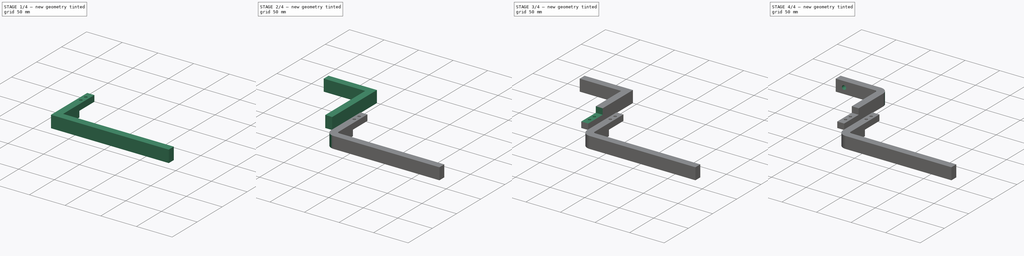
[diagram: build sequence overview — one tinted view per stage of 4, left to right]
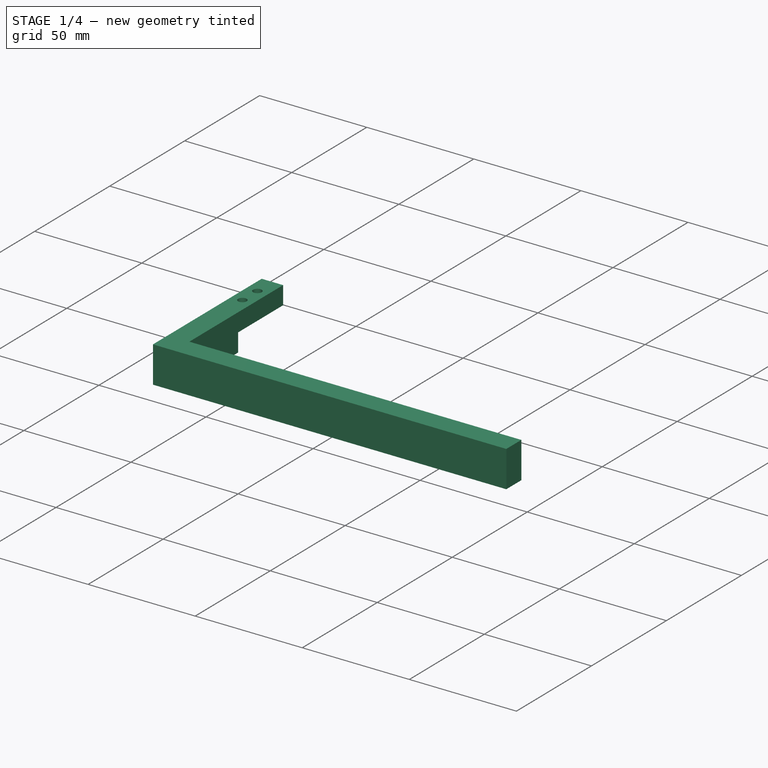
[diagram: stage 1 of 4 — iso view after this stage's code; geometry added in this stage tinted green]
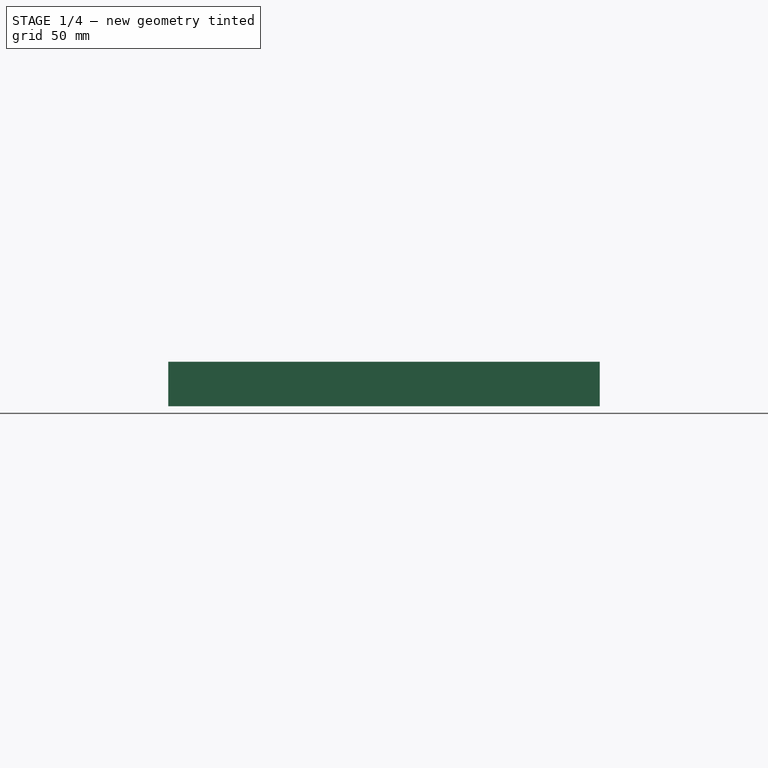
[diagram: stage 1 of 4 — front view after this stage's code; geometry added in this stage tinted green]
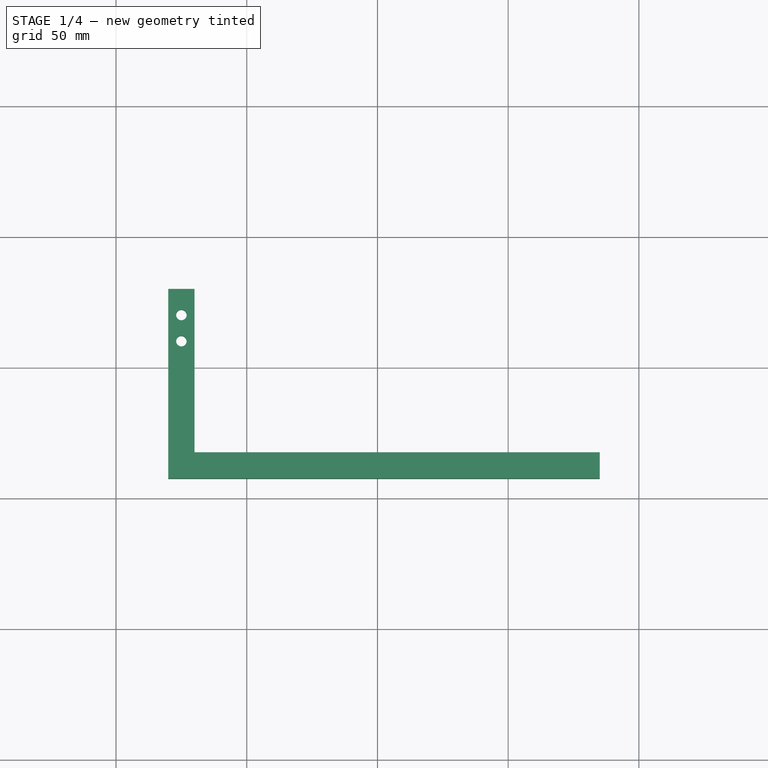
[diagram: stage 1 of 4 — top view after this stage's code; geometry added in this stage tinted green]
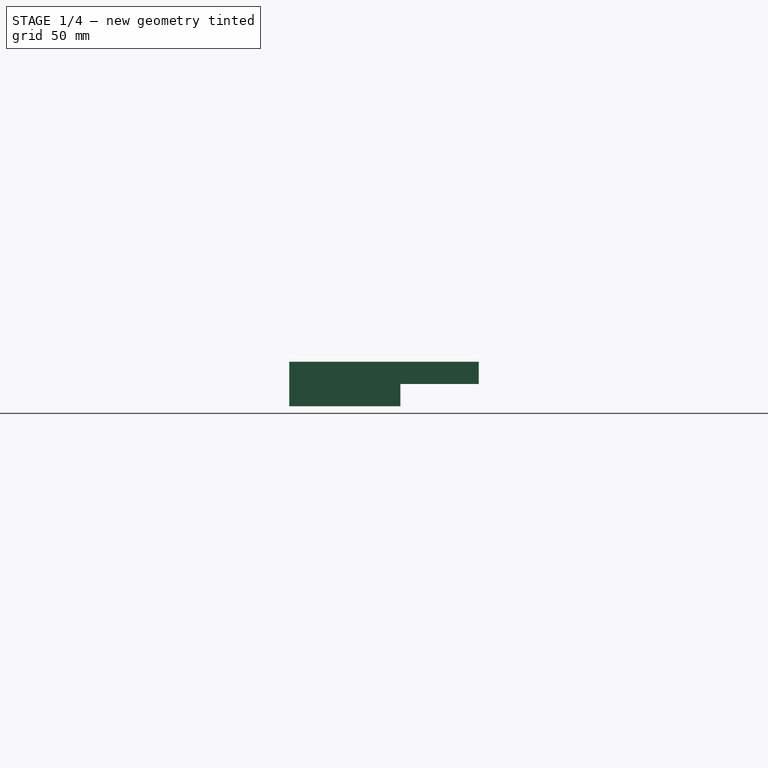
[diagram: stage 1 of 4 — right view after this stage's code; geometry added in this stage tinted green]
FCSTD DOCUMENT  (FreeCAD 0.16R)
Label: soporte mesa pinpon
License: All rights reserved
LicenseURL: http://en.wikipedia.org/wiki/All_rights_reserved
objects: Sketcher::SketchObject×7, PartDesign::Pocket×5, PartDesign::Fillet×4, PartDesign::Pad×2
note: 25 computed .brp shape members not serialized (recipe doc carries the construction recipe); baked Part::Feature solids carry a one-line shape summary decoded from their .brp

FEATURE [Sketcher::SketchObject] Sketch001
  sketch-geometry (6):
    g0: LineSegment StartX=30 StartY=30 StartZ=0 EndX=30 EndY=-32.5 EndZ=0
    g1: LineSegment StartX=30 StartY=-32.5 StartZ=0 EndX=185 EndY=-32.5 EndZ=0
    g2: LineSegment StartX=185 StartY=-32.5 StartZ=0 EndX=185 EndY=-42.5 EndZ=0
    g3: LineSegment StartX=185 StartY=-42.5 StartZ=0 EndX=20 EndY=-42.5 EndZ=0
    g4: LineSegment StartX=20 StartY=-42.5 StartZ=0 EndX=20 EndY=30 EndZ=0
    g5: LineSegment StartX=20 StartY=30 StartZ=0 EndX=30 EndY=30 EndZ=0
  constraints (18):
    c: Vertical(g0)
    c: Coincident(g0,g1)
    c: Horizontal(g1)
    c: Coincident(g1,g2)
    c: Vertical(g2)
    c: Coincident(g2,g3)
    c: Horizontal(g3)
    c: Coincident(g3,g4)
    c: Vertical(g4)
    c: Coincident(g4,g5)
    c: Coincident(g5,g0)
    c: Horizontal(g5)
    c: DistanceY(g-1,g0) = 30
    c: DistanceY(g0,g0) = 62.5
    c: DistanceX(g5,g5) = 10
    c: DistanceX(g1,g1) = 155
    c: DistanceY(g2,g2) = 10
    c: DistanceX(g-1,g3) = 20
FEATURE [PartDesign::Pad] Pad001
  Length = 17
  Length2 = 100
  Midplane = true
  Sketch = -> Sketch001
  Type = 0
FEATURE [Sketcher::SketchObject] Sketch003
  Placement = pos=(0,0,-8.5) rot=(1,0,0;3.14159rad)
  Support = -> Pad001 [Face7]
  sketch-geometry (4):
    g0: LineSegment StartX=49.7811 StartY=-30 StartZ=0 EndX=14.3467 EndY=-30 EndZ=0
    g1: LineSegment StartX=14.3467 StartY=-30 StartZ=0 EndX=14.3467 EndY=0 EndZ=0
    g2: LineSegment StartX=14.3467 StartY=0 StartZ=0 EndX=49.7811 EndY=0 EndZ=0
    g3: LineSegment StartX=49.7811 StartY=0 StartZ=0 EndX=49.7811 EndY=-30 EndZ=0
  constraints (10):
    c: Coincident(g0,g1)
    c: Coincident(g1,g2)
    c: Coincident(g2,g3)
    c: Coincident(g3,g0)
    c: Horizontal(g0)
    c: Horizontal(g2)
    c: Vertical(g1)
    c: Vertical(g3)
    c: PointOnObject(g2,g-1)
    c: DistanceY(g3,g3) = 30
FEATURE [PartDesign::Pocket] Pocket001
  Length = 8.5
  Sketch = -> Sketch003
  Type = 0
FEATURE [Sketcher::SketchObject] Sketch004
  ExternalGeometry = -> [Pocket001]
  Placement = pos=(0,0,8.5) rot=(0,0,1;0rad)
  Support = -> Pocket001 [Face6]
  sketch-geometry (2):
    g0: Circle CenterX=25 CenterY=20 CenterZ=0 NormalX=0 NormalY=0 NormalZ=1 Radius=2
    g1: Circle CenterX=25 CenterY=10 CenterZ=0 NormalX=0 NormalY=0 NormalZ=1 Radius=2
  constraints (6):
    c: Radius(g1) = 2
    c: Equal(g1,g0)
    c: DistanceY(g0,g-3) = 10
    c: DistanceY(g1,g0) = 10
    c: DistanceX(g0,g-3) = 5
    c: DistanceX(g1,g-3) = 5
FEATURE [PartDesign::Pocket] Pocket002
  Length = 8
  Sketch = -> Sketch004
  Type = 1
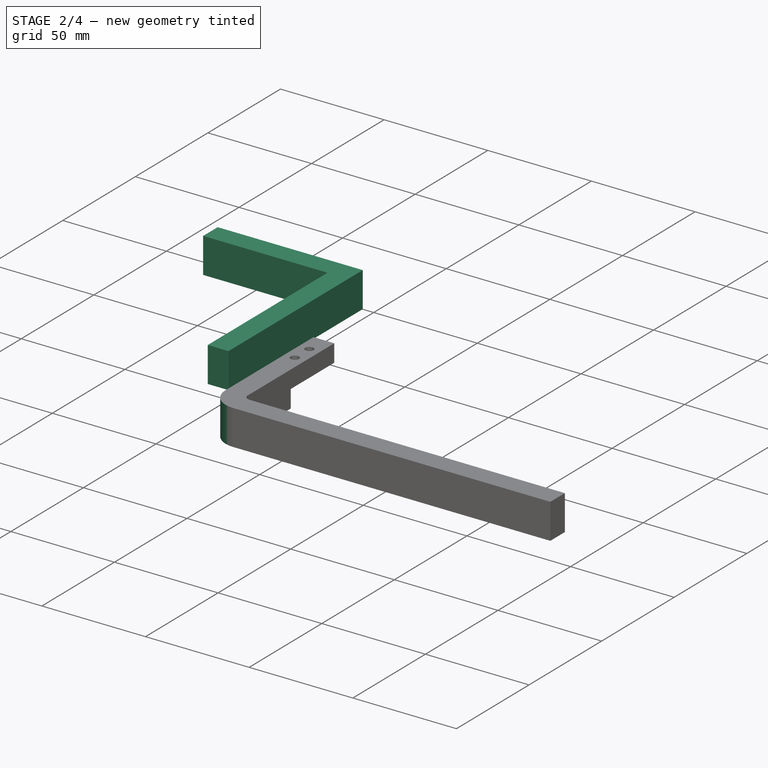
[diagram: stage 2 of 4 — iso view after this stage's code; geometry added in this stage tinted green]
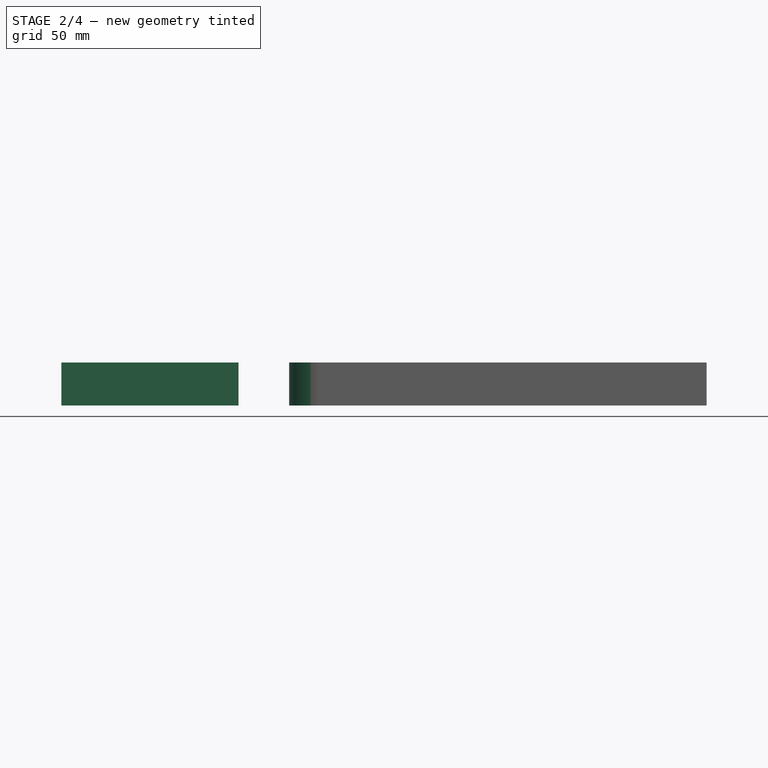
[diagram: stage 2 of 4 — front view after this stage's code; geometry added in this stage tinted green]
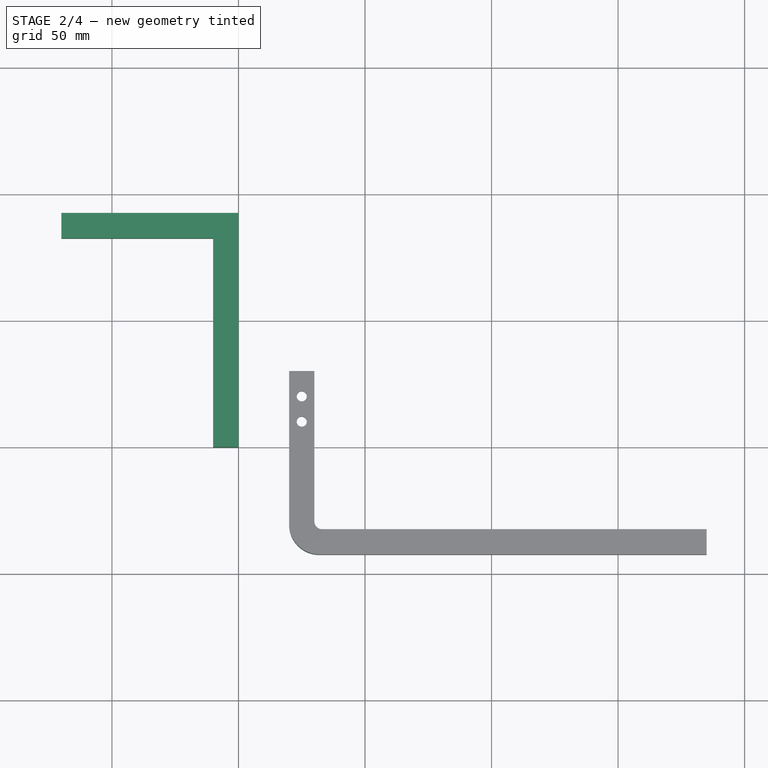
[diagram: stage 2 of 4 — top view after this stage's code; geometry added in this stage tinted green]
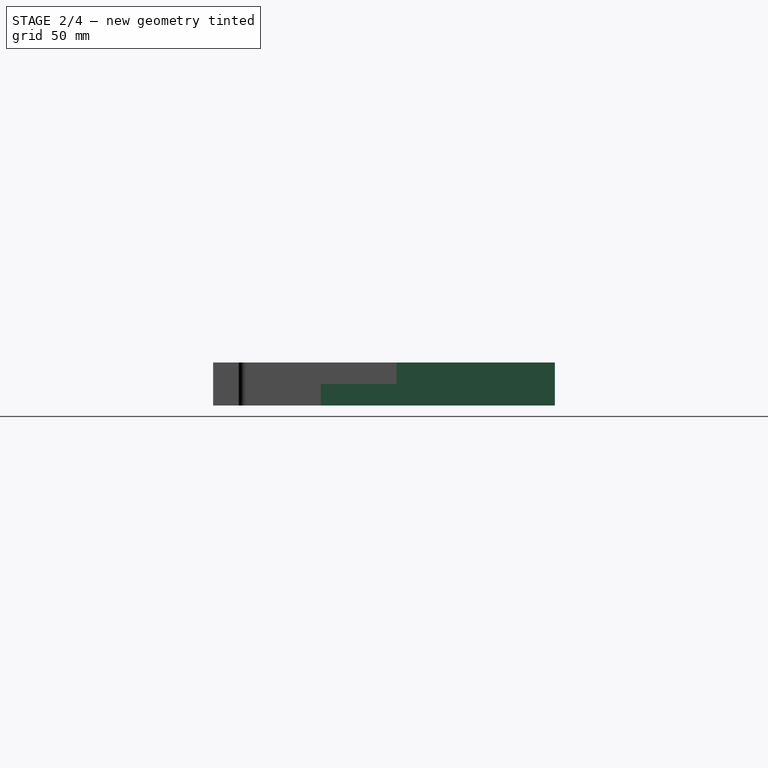
[diagram: stage 2 of 4 — right view after this stage's code; geometry added in this stage tinted green]
FEATURE [Sketcher::SketchObject] Sketch
  sketch-geometry (6):
    g0: LineSegment StartX=-70 StartY=92.5 StartZ=0 EndX=0 EndY=92.5 EndZ=0
    g1: LineSegment StartX=0 StartY=92.5 StartZ=0 EndX=0 EndY=0 EndZ=0
    g2: LineSegment StartX=0 StartY=0 StartZ=0 EndX=-10 EndY=0 EndZ=0
    g3: LineSegment StartX=-10 StartY=0 StartZ=0 EndX=-10 EndY=82.5 EndZ=0
    g4: LineSegment StartX=-10 StartY=82.5 StartZ=0 EndX=-70 EndY=82.5 EndZ=0
    g5: LineSegment StartX=-70 StartY=82.5 StartZ=0 EndX=-70 EndY=92.5 EndZ=0
  constraints (18):
    c: PointOnObject(g0,g-2)
    c: Horizontal(g0)
    c: Coincident(g0,g1)
    c: PointOnObject(g1,g-2)
    c: Coincident(g1,g2)
    c: Coincident(g2,g3)
    c: Vertical(g3)
    c: Coincident(g3,g4)
    c: Horizontal(g4)
    c: Coincident(g4,g5)
    c: Coincident(g5,g0)
    c: Vertical(g5)
    c: Horizontal(g2)
    c: DistanceY(g1,g1) = 92.5
    c: DistanceX(g0,g0) = 70
    c: DistanceY(g5,g5) = 10
    c: DistanceX(g2,g2) = 10
    c: Coincident(g1,g-1)
FEATURE [PartDesign::Pad] Pad
  Length = 17
  Length2 = 100
  Midplane = true
  Sketch = -> Sketch
  Type = 0
FEATURE [PartDesign::Fillet] Fillet
  Base = -> Pocket002 [Edge27]
  Radius = 12
FEATURE [PartDesign::Fillet] Fillet003  label="Base Larga"
  Base = -> Fillet [Edge20]
  Radius = 3
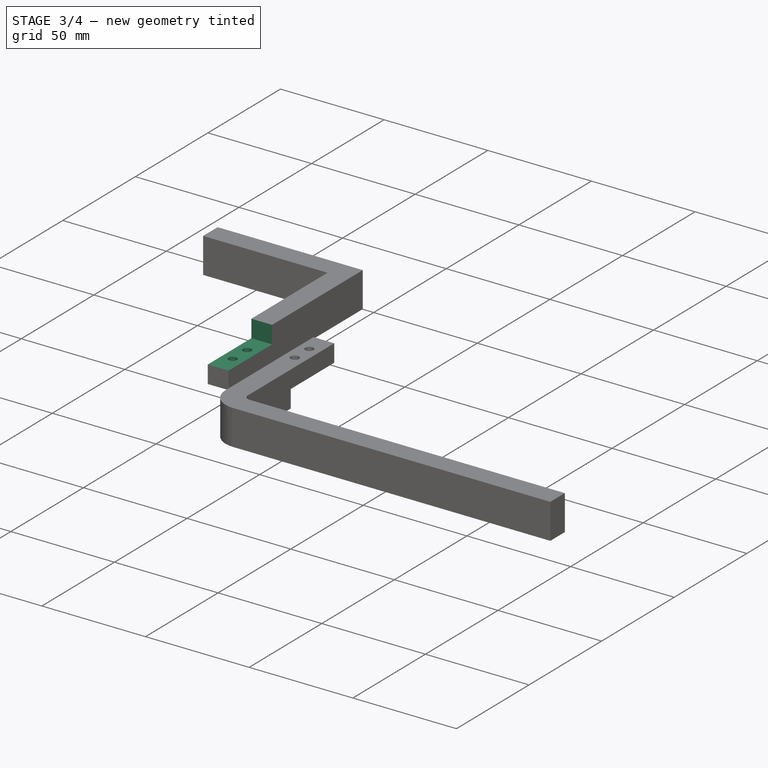
[diagram: stage 3 of 4 — iso view after this stage's code; geometry added in this stage tinted green]
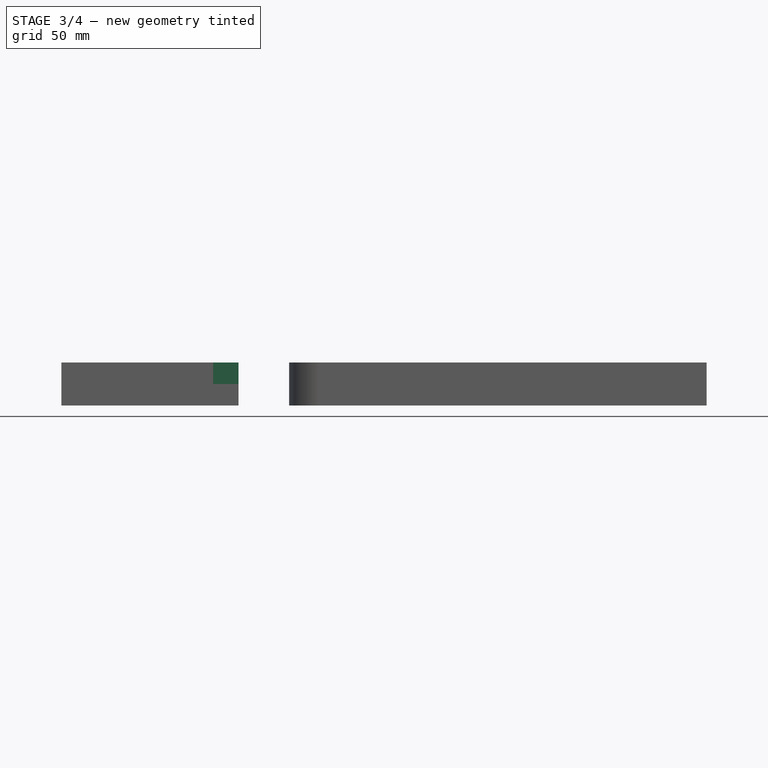
[diagram: stage 3 of 4 — front view after this stage's code; geometry added in this stage tinted green]
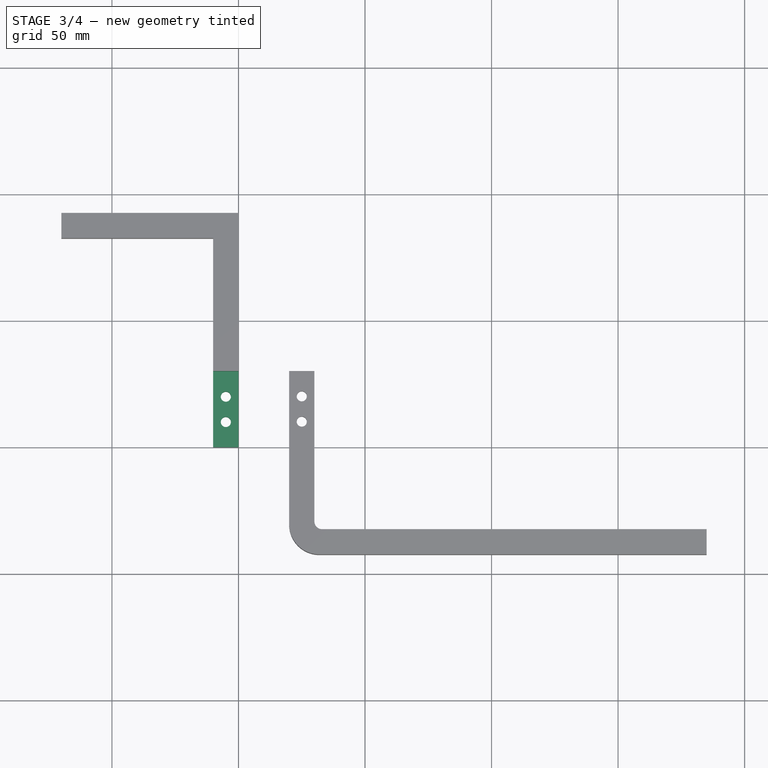
[diagram: stage 3 of 4 — top view after this stage's code; geometry added in this stage tinted green]
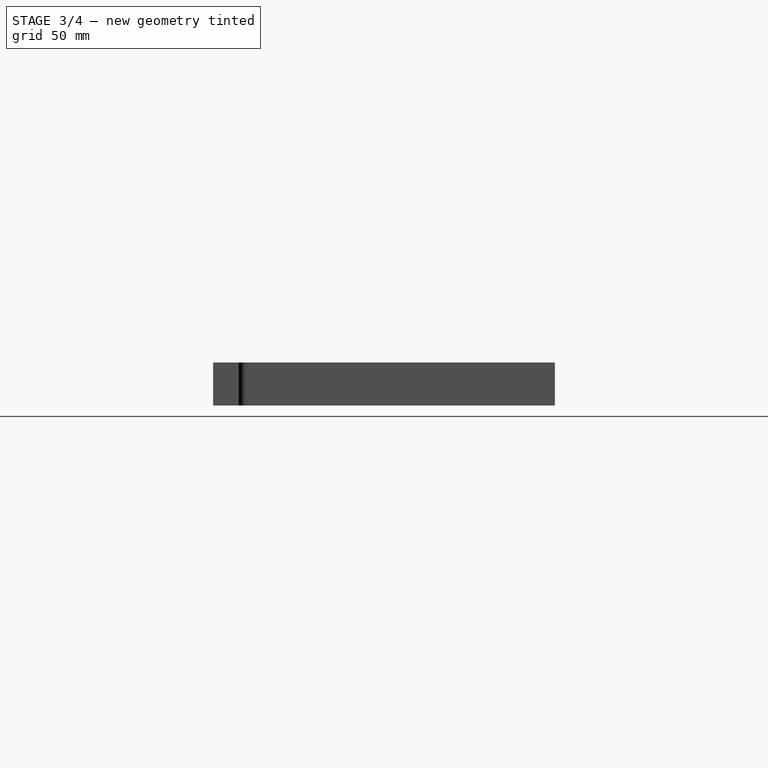
[diagram: stage 3 of 4 — right view after this stage's code; geometry added in this stage tinted green]
FEATURE [Sketcher::SketchObject] Sketch002
  Placement = pos=(0,0,8.5) rot=(0,0,1;0rad)
  Support = -> Pad [Face8]
  sketch-geometry (4):
    g0: LineSegment StartX=10.8292 StartY=0 StartZ=0 EndX=-24.0706 EndY=0 EndZ=0
    g1: LineSegment StartX=-24.0706 StartY=0 StartZ=0 EndX=-24.0706 EndY=30 EndZ=0
    g2: LineSegment StartX=-24.0706 StartY=30 StartZ=0 EndX=10.8292 EndY=30 EndZ=0
    g3: LineSegment StartX=10.8292 StartY=30 StartZ=0 EndX=10.8292 EndY=0 EndZ=0
  constraints (10):
    c: Coincident(g0,g1)
    c: Coincident(g1,g2)
    c: Coincident(g2,g3)
    c: Coincident(g3,g0)
    c: Horizontal(g0)
    c: Horizontal(g2)
    c: Vertical(g1)
    c: Vertical(g3)
    c: PointOnObject(g0,g-1)
    c: DistanceY(g1,g1) = 30
FEATURE [PartDesign::Pocket] Pocket
  Length = 8.5
  Sketch = -> Sketch002
  Type = 0
FEATURE [Sketcher::SketchObject] Sketch005
  Support = -> Pocket [Face8]
  sketch-geometry (2):
    g0: Circle CenterX=-5 CenterY=10 CenterZ=0 NormalX=0 NormalY=0 NormalZ=1 Radius=2
    g1: Circle CenterX=-5 CenterY=20 CenterZ=0 NormalX=0 NormalY=0 NormalZ=1 Radius=2
  constraints (6):
    c: Radius(g0) = 2
    c: Equal(g0,g1)
    c: DistanceY(g-1,g0) = 10
    c: DistanceY(g0,g1) = 10
    c: DistanceX(g0,g-1) = 5
    c: DistanceX(g1,g-1) = 5
FEATURE [PartDesign::Pocket] Pocket003
  Length = 5
  Sketch = -> Sketch005
  Type = 1
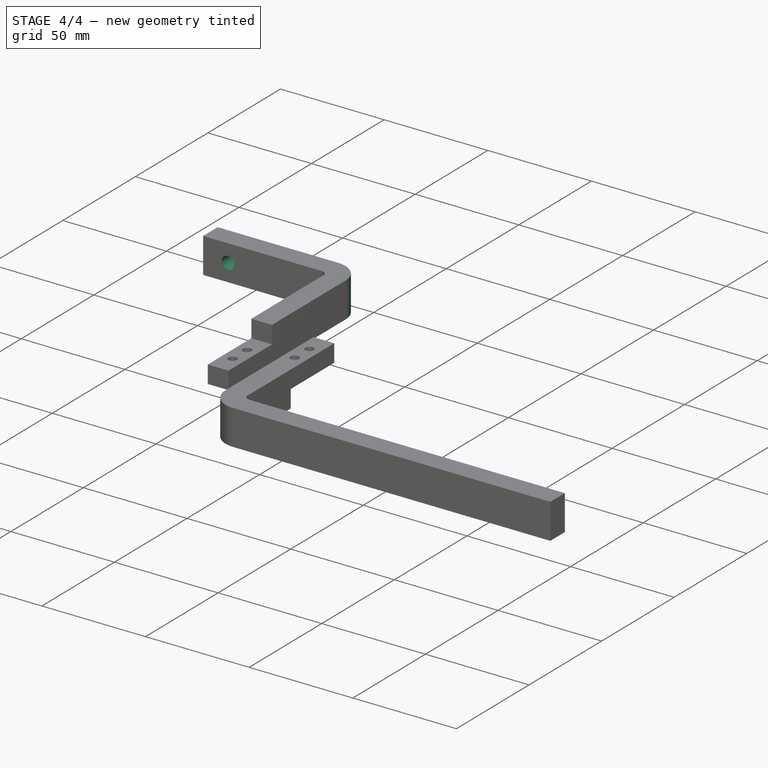
[diagram: stage 4 of 4 — iso view after this stage's code; geometry added in this stage tinted green]
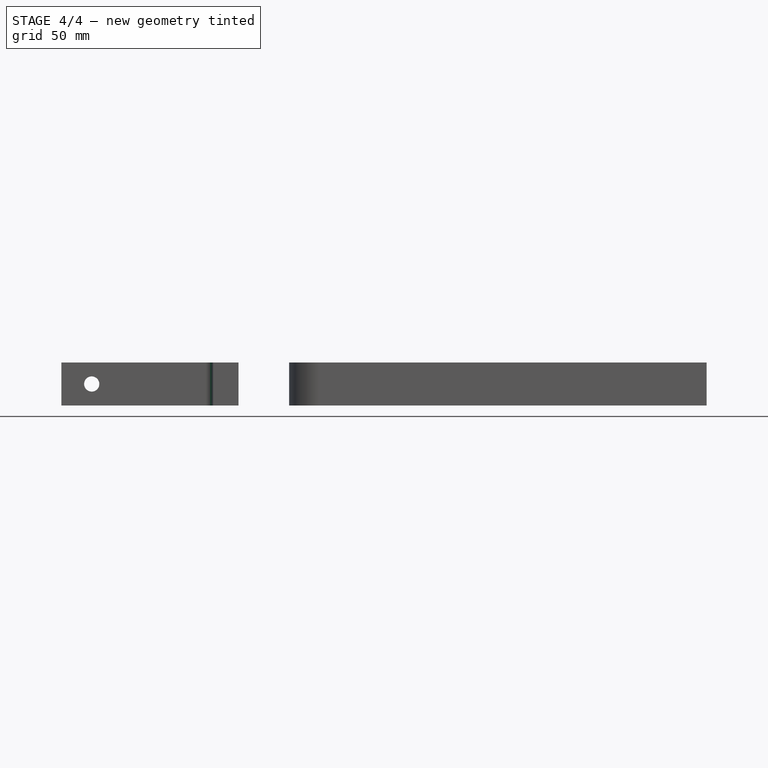
[diagram: stage 4 of 4 — front view after this stage's code; geometry added in this stage tinted green]
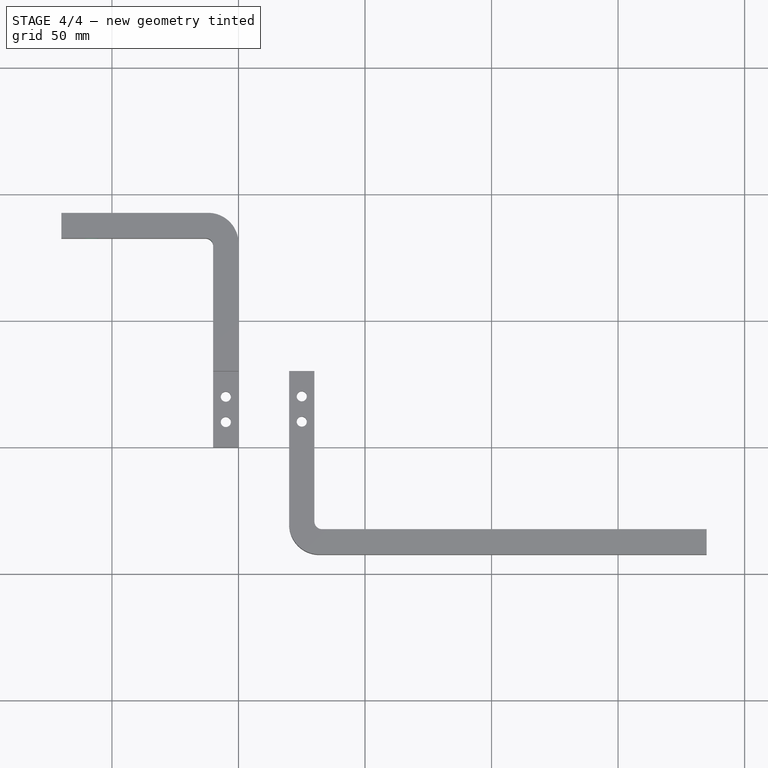
[diagram: stage 4 of 4 — top view after this stage's code; geometry added in this stage tinted green]
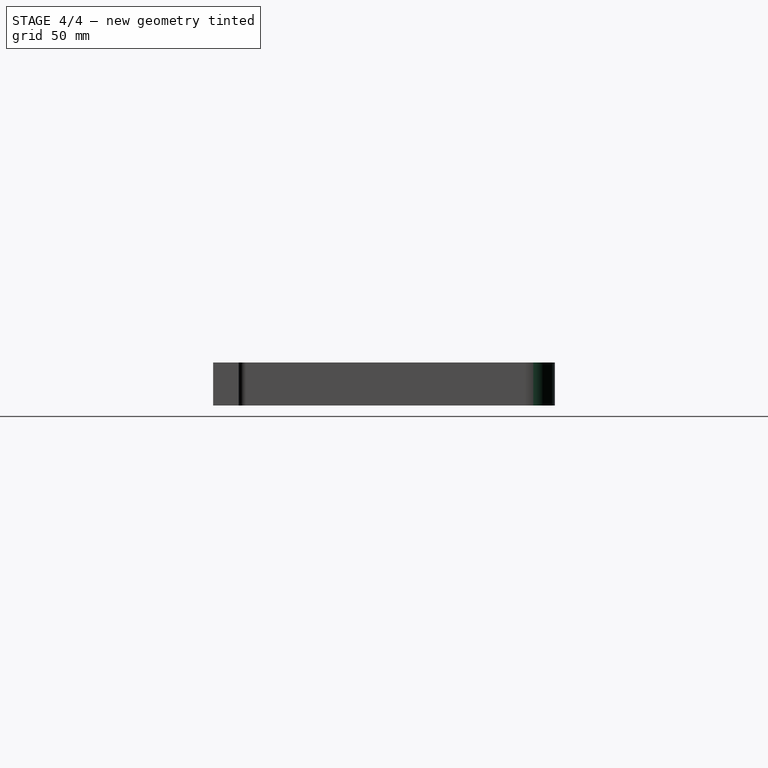
[diagram: stage 4 of 4 — right view after this stage's code; geometry added in this stage tinted green]
FEATURE [Sketcher::SketchObject] Sketch006
  ExternalGeometry = -> [Pocket003]
  Placement = pos=(0,92.5,0) rot=(0,0.707107,0.707107;3.14159rad)
  Support = -> Pocket003 [Face1]
  sketch-geometry (1):
    g0: Circle CenterX=58 CenterY=0 CenterZ=0 NormalX=0 NormalY=0 NormalZ=1 Radius=3
  constraints (3):
    c: PointOnObject(g0,g-1)
    c: DistanceX(g0,g-3) = 12
    c: Radius(g0) = 3
FEATURE [PartDesign::Pocket] Pocket004
  Length = 5
  Sketch = -> Sketch006
  Type = 1
FEATURE [PartDesign::Fillet] Fillet001
  Base = -> Pocket004 [Edge4]
  Radius = 12
FEATURE [PartDesign::Fillet] Fillet002  label="Base Corta"
  Base = -> Fillet001 [Edge27]
  Radius = 3
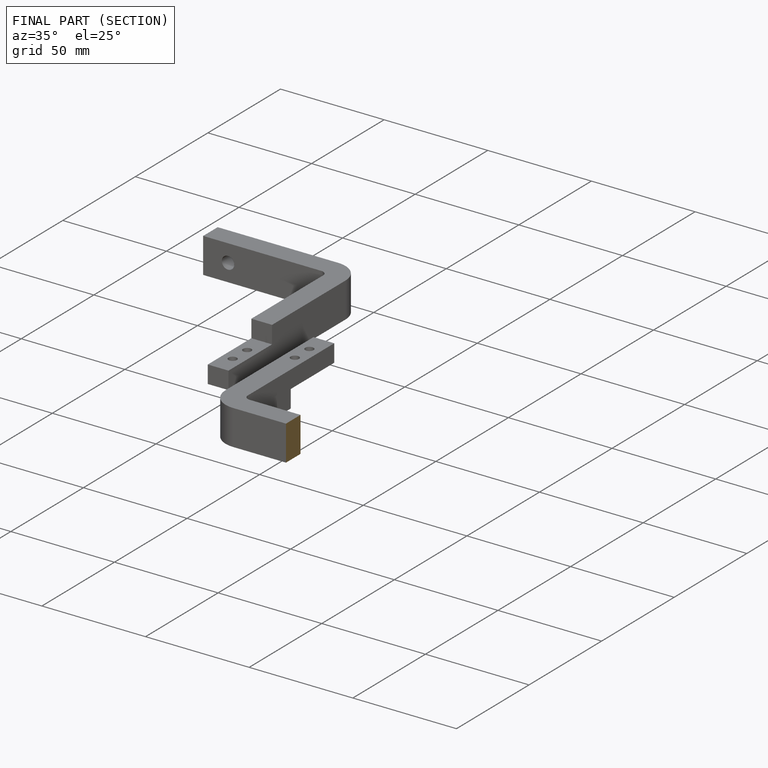
[diagram: finished part — half-section view (interior)]
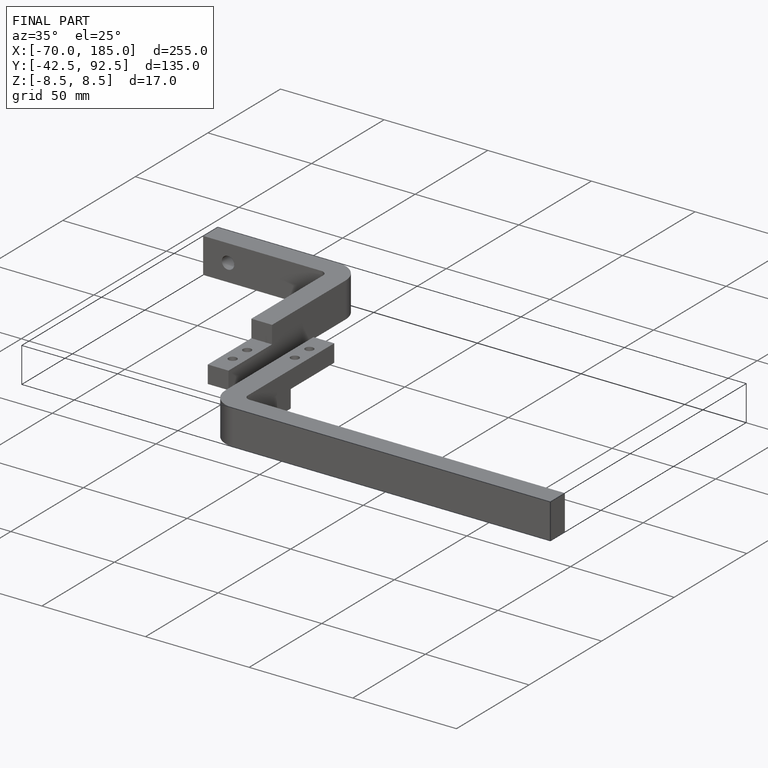
[diagram: finished part — iso view with bounding-box wireframe]
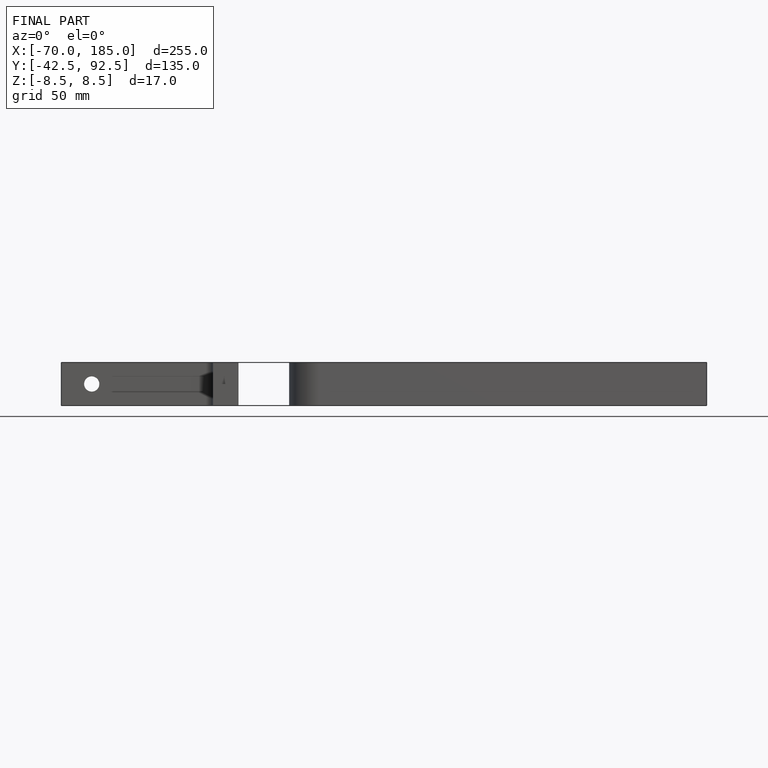
[diagram: finished part — front view with bounding-box wireframe]
